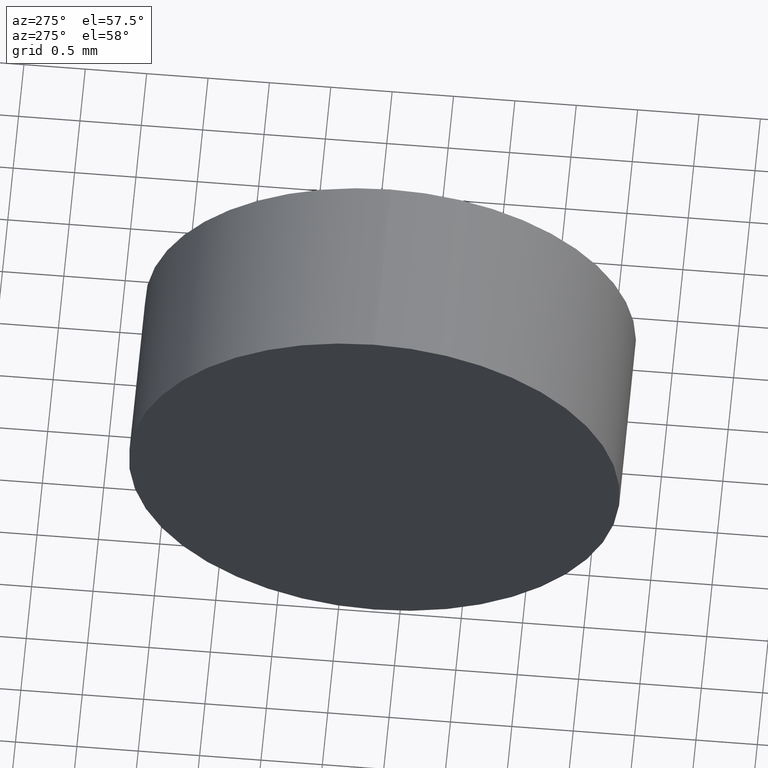
[diagram: clean part render]
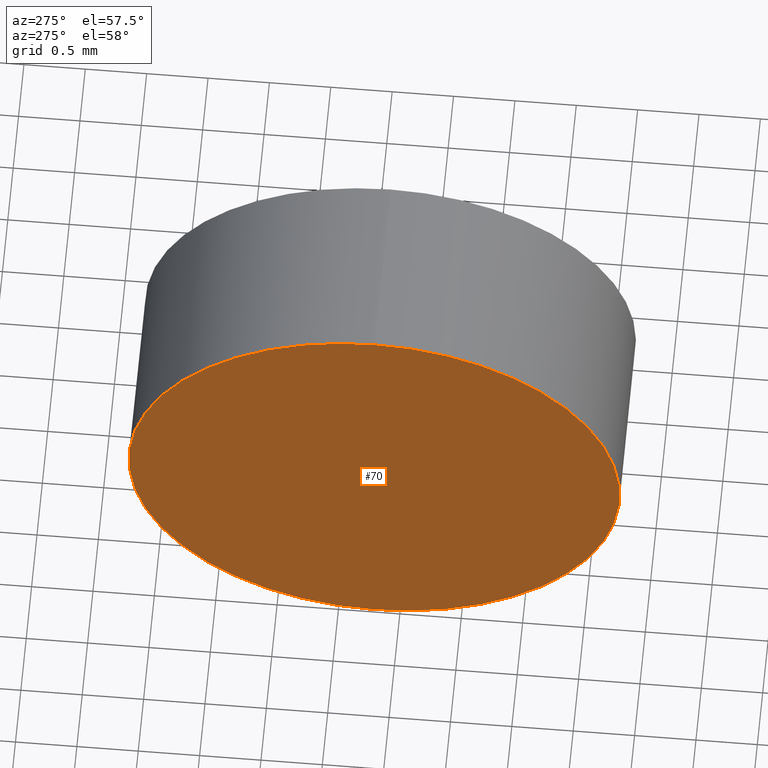
[diagram: same view with one face highlighted and labeled with its STEP entity id]
A machine part, auxiliary view. The second image highlights one B-rep face of the part: STEP entity #70.
In plain terms, the highlighted planar face has unit normal (1, 0, 0).
Its self-contained STEP definition (entity closure, byte-faithful):
#7 = CARTESIAN_POINT ( 'NONE',  ( 382.9667065319727000, 60.20486323735121900, 0.0000000000000000000 ) ) ;
#8 = VERTEX_POINT ( 'NONE', #140 ) ;
#9 = DIRECTION ( 'NONE',  ( -1.000000000000000000, -0.0000000000000000000, -0.0000000000000000000 ) ) ;
#13 = AXIS2_PLACEMENT_3D ( 'NONE', #52, #182, #63 ) ;
#16 = AXIS2_PLACEMENT_3D ( 'NONE', #119, #143, #99 ) ;
#20 = VERTEX_POINT ( 'NONE', #78 ) ;
#22 = DIRECTION ( 'NONE',  ( 0.0000000000000000000, 0.0000000000000000000, 1.000000000000000000 ) ) ;
#32 = PLANE ( 'NONE',  #13 ) ;
#52 = CARTESIAN_POINT ( 'NONE',  ( 382.9667065319727000, 60.20486323735121900, 0.0000000000000000000 ) ) ;
#59 = ORIENTED_EDGE ( 'NONE', *, *, #85, .T. ) ;
#63 = DIRECTION ( 'NONE',  ( 0.0000000000000000000, 0.0000000000000000000, -1.000000000000000000 ) ) ;
#70 = ADVANCED_FACE ( 'NONE', ( #172 ), #32, .F. ) ;
#78 = CARTESIAN_POINT ( 'NONE',  ( 382.9667065319727000, 60.20486323735121900, -2.000000000000001800 ) ) ;
#85 = EDGE_CURVE ( 'NONE', #8, #20, #91, .T. ) ;
#91 = CIRCLE ( 'NONE', #166, 2.000000000000001800 ) ;
#99 = DIRECTION ( 'NONE',  ( 0.0000000000000000000, 0.0000000000000000000, 1.000000000000000000 ) ) ;
#100 = EDGE_LOOP ( 'NONE', ( #59, #125 ) ) ;
#119 = CARTESIAN_POINT ( 'NONE',  ( 382.9667065319727000, 60.20486323735121900, 0.0000000000000000000 ) ) ;
#125 = ORIENTED_EDGE ( 'NONE', *, *, #153, .T. ) ;
#139 = CIRCLE ( 'NONE', #16, 2.000000000000001800 ) ;
#140 = CARTESIAN_POINT ( 'NONE',  ( 382.9667065319727000, 60.20486323735121900, 2.000000000000001800 ) ) ;
#143 = DIRECTION ( 'NONE',  ( -1.000000000000000000, -0.0000000000000000000, -0.0000000000000000000 ) ) ;
#153 = EDGE_CURVE ( 'NONE', #20, #8, #139, .T. ) ;
#166 = AXIS2_PLACEMENT_3D ( 'NONE', #7, #9, #22 ) ;
#172 = FACE_OUTER_BOUND ( 'NONE', #100, .T. ) ;
#182 = DIRECTION ( 'NONE',  ( 1.000000000000000000, 0.0000000000000000000, 0.0000000000000000000 ) ) ;